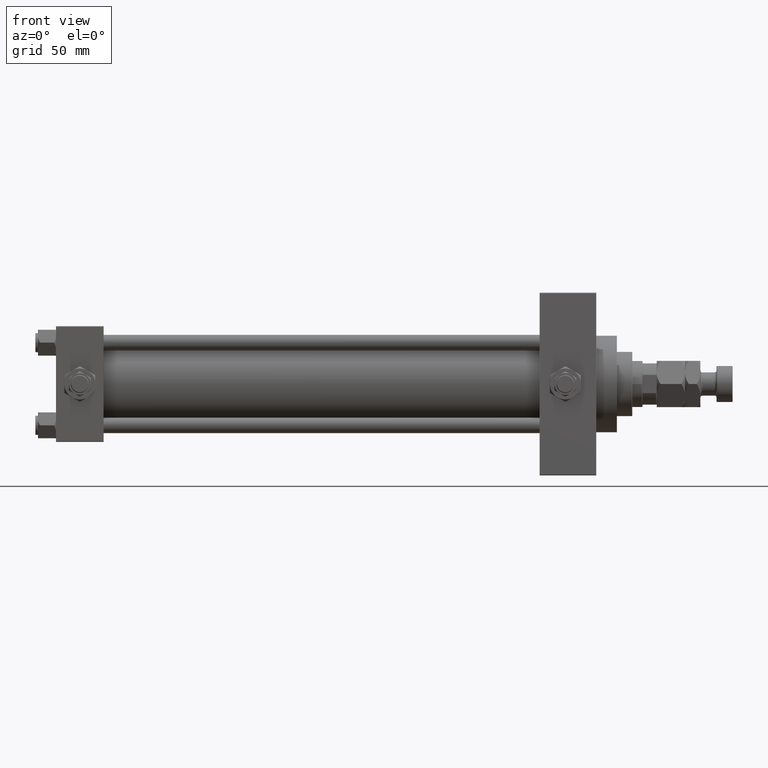
[diagram: clean part render]
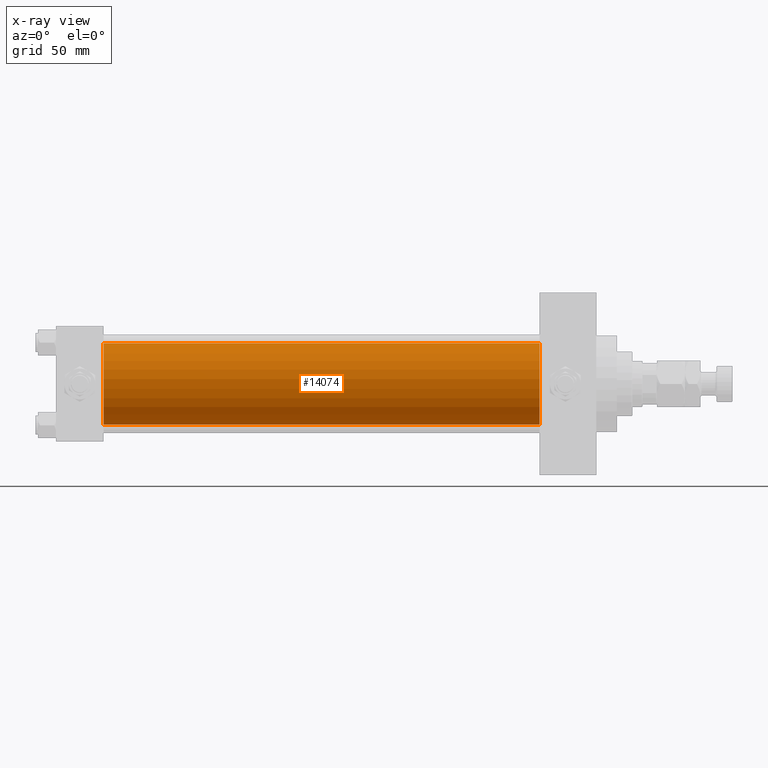
[diagram: x-ray — body ghosted, one internal face saturated and labeled with its STEP entity id]
A machine part, front view, then the same camera in x-ray: the body is ghosted and one INTERNAL B-rep face — a face not visible from any outside direction — is saturated and labeled: STEP entity #14074.
In plain terms, the highlighted cylindrical surface (partial cylindrical patch) has radius 31.5 mm, axis along (-1, -0, -0).
Its self-contained STEP definition (entity closure, byte-faithful):
#119 = CARTESIAN_POINT ( 'NONE',  ( 37.00000000000000000, -2.602085213965210642E-15, 31.50000000000000000 ) ) ;
#226 = EDGE_CURVE ( 'NONE', #28045, #33754, #23506, .T. ) ;
#487 = AXIS2_PLACEMENT_3D ( 'NONE', #28682, #29195, #5225 ) ;
#2496 = EDGE_CURVE ( 'NONE', #34391, #48653, #9244, .T. ) ;
#5225 = DIRECTION ( 'NONE',  ( 0.000000000000000000, 0.000000000000000000, -1.000000000000000000 ) ) ;
#6124 = CARTESIAN_POINT ( 'NONE',  ( 376.0000000000000000, -2.602085213965210642E-15, 31.50000000000000000 ) ) ;
#7583 = CARTESIAN_POINT ( 'NONE',  ( 376.0000000000000000, -2.602085213965210642E-15, 31.50000000000000000 ) ) ;
#9244 = LINE ( 'NONE', #6124, #41787 ) ;
#10820 = DIRECTION ( 'NONE',  ( 0.000000000000000000, 0.000000000000000000, 1.000000000000000000 ) ) ;
#14074 = ADVANCED_FACE ( 'NONE', ( #34292 ), #35313, .F. ) ;
#14934 = DIRECTION ( 'NONE',  ( -1.000000000000000000, -0.000000000000000000, -0.000000000000000000 ) ) ;
#15006 = CARTESIAN_POINT ( 'NONE',  ( 376.0000000000000000, 1.255552203348951850E-15, -31.50000000000000000 ) ) ;
#19096 = ORIENTED_EDGE ( 'NONE', *, *, #27165, .F. ) ;
#21061 = CIRCLE ( 'NONE', #487, 31.50000000000000000 ) ;
#23506 = LINE ( 'NONE', #15006, #43336 ) ;
#23897 = CARTESIAN_POINT ( 'NONE',  ( 376.0000000000000000, -2.602085213965210642E-15, 0.000000000000000000 ) ) ;
#24140 = CIRCLE ( 'NONE', #30724, 31.50000000000000000 ) ;
#25945 = ORIENTED_EDGE ( 'NONE', *, *, #226, .T. ) ;
#27165 = EDGE_CURVE ( 'NONE', #48653, #33754, #21061, .T. ) ;
#28045 = VERTEX_POINT ( 'NONE', #43471 ) ;
#28682 = CARTESIAN_POINT ( 'NONE',  ( 37.00000000000000000, -2.602085213965210642E-15, 0.000000000000000000 ) ) ;
#29195 = DIRECTION ( 'NONE',  ( 1.000000000000000000, 0.000000000000000000, 0.000000000000000000 ) ) ;
#30724 = AXIS2_PLACEMENT_3D ( 'NONE', #23897, #50449, #34488 ) ;
#32265 = AXIS2_PLACEMENT_3D ( 'NONE', #50003, #14934, #10820 ) ;
#33754 = VERTEX_POINT ( 'NONE', #49318 ) ;
#34292 = FACE_OUTER_BOUND ( 'NONE', #40442, .T. ) ;
#34391 = VERTEX_POINT ( 'NONE', #7583 ) ;
#34488 = DIRECTION ( 'NONE',  ( 0.000000000000000000, 0.000000000000000000, -1.000000000000000000 ) ) ;
#34788 = ORIENTED_EDGE ( 'NONE', *, *, #2496, .F. ) ;
#35313 = CYLINDRICAL_SURFACE ( 'NONE', #32265, 31.50000000000000000 ) ;
#35390 = DIRECTION ( 'NONE',  ( -1.000000000000000000, -0.000000000000000000, -0.000000000000000000 ) ) ;
#36841 = DIRECTION ( 'NONE',  ( -1.000000000000000000, -0.000000000000000000, -0.000000000000000000 ) ) ;
#39327 = ORIENTED_EDGE ( 'NONE', *, *, #47495, .T. ) ;
#40442 = EDGE_LOOP ( 'NONE', ( #39327, #25945, #19096, #34788 ) ) ;
#41787 = VECTOR ( 'NONE', #36841, 1000.000000000000000 ) ;
#43336 = VECTOR ( 'NONE', #35390, 1000.000000000000000 ) ;
#43471 = CARTESIAN_POINT ( 'NONE',  ( 376.0000000000000000, 1.255552203348951850E-15, -31.50000000000000000 ) ) ;
#47495 = EDGE_CURVE ( 'NONE', #34391, #28045, #24140, .T. ) ;
#48653 = VERTEX_POINT ( 'NONE', #119 ) ;
#49318 = CARTESIAN_POINT ( 'NONE',  ( 37.00000000000000000, 1.255552203348951850E-15, -31.50000000000000000 ) ) ;
#50003 = CARTESIAN_POINT ( 'NONE',  ( 376.0000000000000000, -2.602085213965210642E-15, 0.000000000000000000 ) ) ;
#50449 = DIRECTION ( 'NONE',  ( 1.000000000000000000, 0.000000000000000000, 0.000000000000000000 ) ) ;